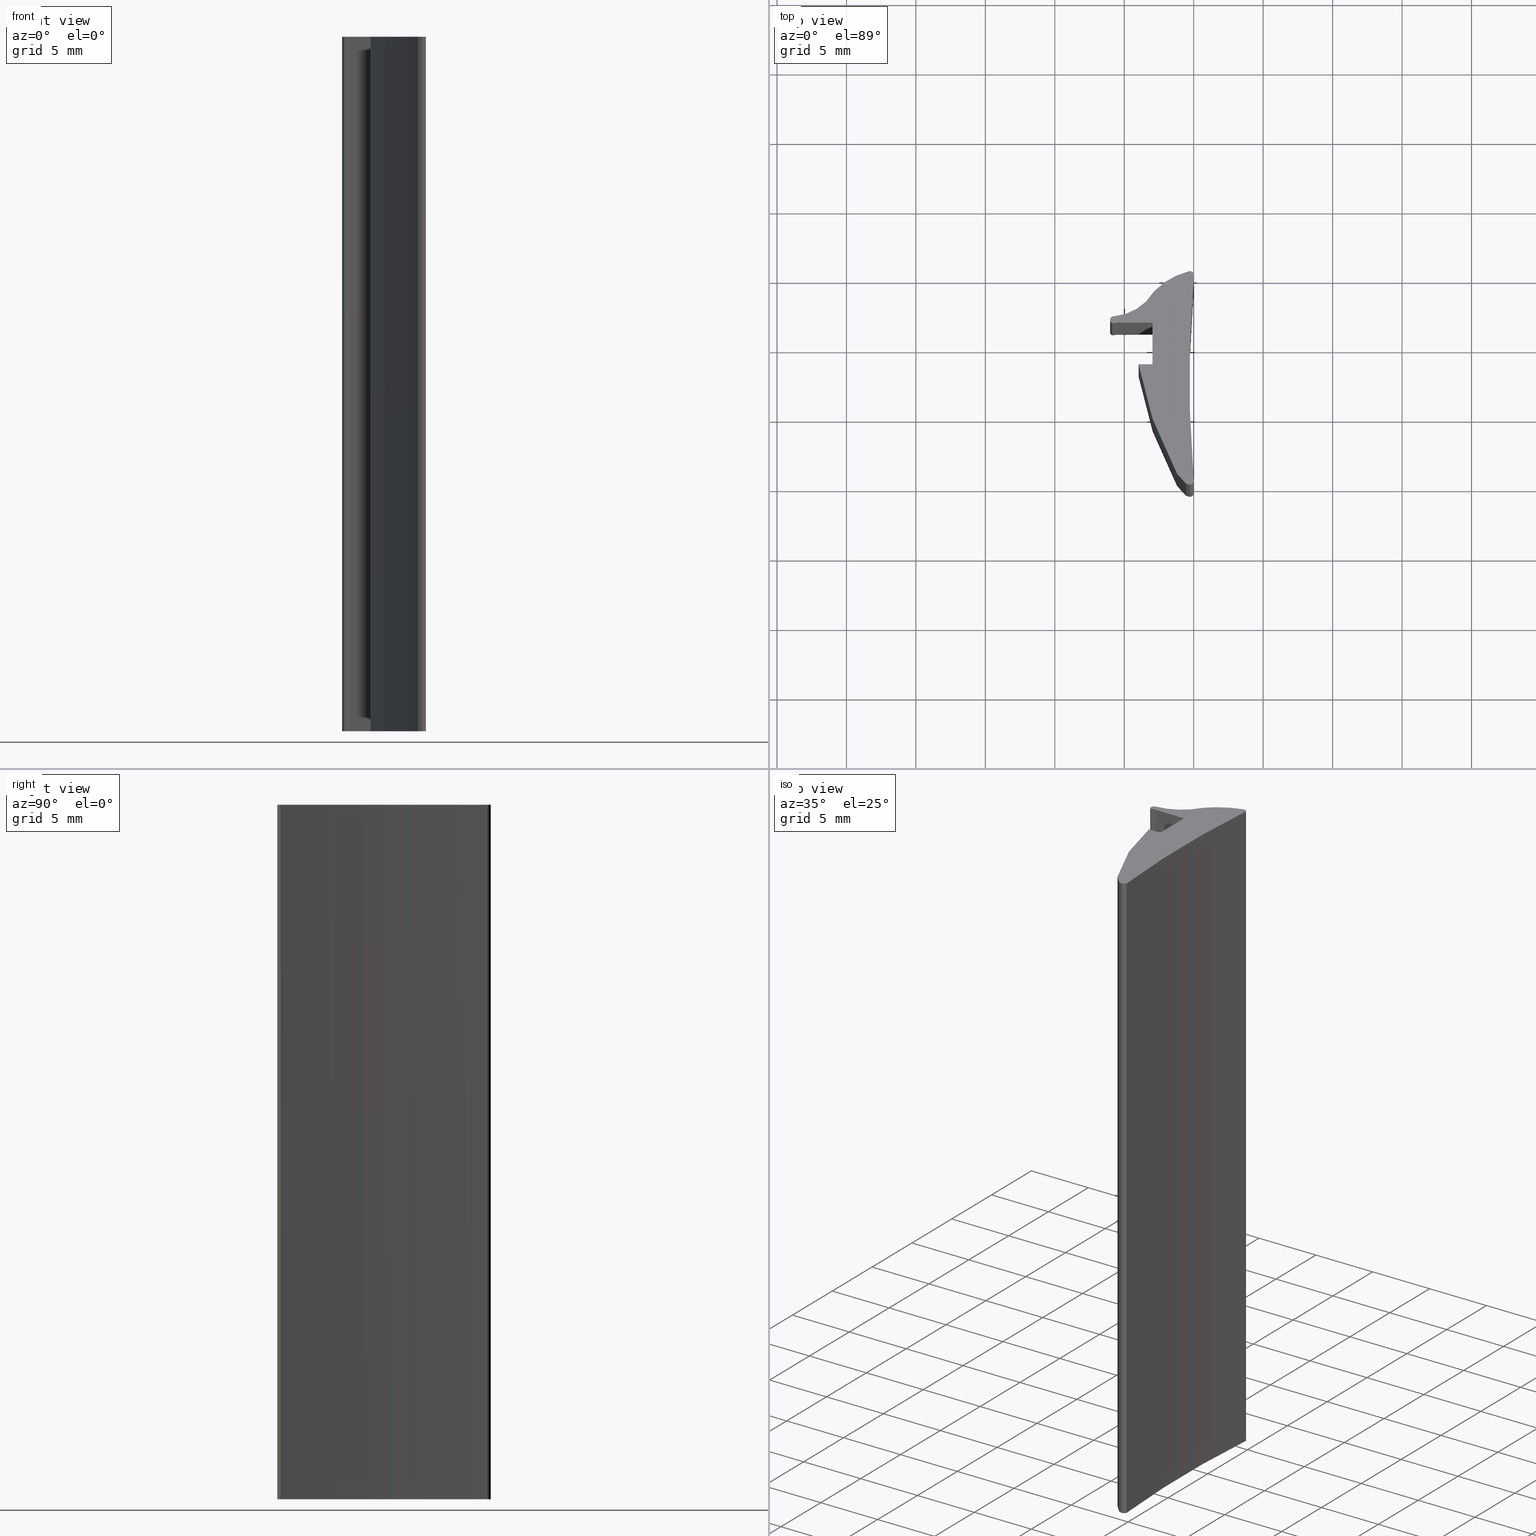
[diagram: canonical four-view strip — front | top / right | iso, engineering-drawing reading convention]
A machine part, canonical four-view strip (front | top / right | iso — engineering-drawing reading convention). The complete STEP part file that produces these views, byte-faithful:
ISO-10303-21;
HEADER;
/****************************************************************
 * Generated by software with PDE/Lib inside                    *
 * PDElib Version v4.4, created Mon 02/23/2004                  *
 * International Technegroup Inc. (www.iti-oh.com)              *
 ****************************************************************/
FILE_DESCRIPTION(('STEP AP203'),'2;1');
FILE_NAME('21.010.00N.stp','2011-03-21T16:07:17',(''),(''),'2009.3.110','THINKDESIGN','');
FILE_SCHEMA(('CONFIG_CONTROL_DESIGN'));
ENDSEC;
DATA;
#2=CARTESIAN_POINT('',(0.843107732099725,10.017684151136564,0.0));
#3=DIRECTION('',(0.0,0.0,1.0));
#4=DIRECTION('',(1.0,0.0,0.0));
#5=AXIS2_PLACEMENT_3D('',#2,#3,#4);
#6=CYLINDRICAL_SURFACE('',#5,5.105810893975942);
#7=CARTESIAN_POINT('',(-0.373412997100786,14.976452365166097,0.0));
#8=VERTEX_POINT('',#7);
#9=CARTESIAN_POINT('',(-3.438338466674850,12.799504298457578,0.0));
#10=VERTEX_POINT('',#9);
#11=CARTESIAN_POINT('',(0.843107732099725,10.017684151136564,0.0));
#12=DIRECTION('',(0.0,0.0,1.0));
#13=DIRECTION('',(1.0,0.0,0.0));
#14=AXIS2_PLACEMENT_3D('',#11,#12,#13);
#15=CIRCLE('',#14,5.105810893975942);
#16=EDGE_CURVE('',#8,#10,#15,.T.);
#17=ORIENTED_EDGE('',*,*,#16,.T.);
#18=CARTESIAN_POINT('',(-3.438338466674850,12.799504298457578,50.0));
#19=VERTEX_POINT('',#18);
#20=CARTESIAN_POINT('',(-3.438338466674850,12.799504298457578,0.0));
#21=DIRECTION('',(0.0,0.0,1.0));
#22=VECTOR('',#21,50.0);
#23=LINE('',#20,#22);
#24=EDGE_CURVE('',#10,#19,#23,.T.);
#25=ORIENTED_EDGE('',*,*,#24,.T.);
#26=CARTESIAN_POINT('',(-0.373412997100786,14.976452365166097,50.0));
#27=VERTEX_POINT('',#26);
#28=CARTESIAN_POINT('',(0.843107732099725,10.017684151136564,50.0));
#29=DIRECTION('',(0.0,0.0,1.0));
#30=DIRECTION('',(1.0,0.0,0.0));
#31=AXIS2_PLACEMENT_3D('',#28,#29,#30);
#32=CIRCLE('',#31,5.105810893975942);
#33=EDGE_CURVE('',#27,#19,#32,.T.);
#34=ORIENTED_EDGE('',*,*,#33,.F.);
#35=CARTESIAN_POINT('',(-0.373412997100786,14.976452365166097,0.0));
#36=DIRECTION('',(0.0,0.0,1.0));
#37=VECTOR('',#36,50.0);
#38=LINE('',#35,#37);
#39=EDGE_CURVE('',#8,#27,#38,.T.);
#40=ORIENTED_EDGE('',*,*,#39,.F.);
#41=EDGE_LOOP('',(#17,#25,#34,#40));
#42=FACE_OUTER_BOUND('',#41,.T.);
#43=ADVANCED_FACE('',(#42),#6,.T.);
#44=CARTESIAN_POINT('',(-6.041799594229815,15.450228709320072,0.0));
#45=DIRECTION('',(0.0,0.0,-1.0));
#46=DIRECTION('',(0.700717752856592,-0.713438596398882,0.0));
#47=AXIS2_PLACEMENT_3D('',#44,#45,#46);
#48=CYLINDRICAL_SURFACE('',#47,3.715420534075678);
#49=CARTESIAN_POINT('',(-5.776201867659438,11.744313492714355,0.0));
#50=VERTEX_POINT('',#49);
#51=CARTESIAN_POINT('',(-6.041799594229815,15.450228709320072,0.0));
#52=DIRECTION('',(0.0,0.0,-1.0));
#53=DIRECTION('',(1.0,0.0,0.0));
#54=AXIS2_PLACEMENT_3D('',#51,#52,#53);
#55=CIRCLE('',#54,3.715420534075678);
#56=EDGE_CURVE('',#10,#50,#55,.T.);
#57=ORIENTED_EDGE('',*,*,#56,.T.);
#58=CARTESIAN_POINT('',(-5.776201867659438,11.744313492714355,50.0));
#59=VERTEX_POINT('',#58);
#60=CARTESIAN_POINT('',(-5.776201867659438,11.744313492714355,0.0));
#61=DIRECTION('',(0.0,0.0,1.0));
#62=VECTOR('',#61,50.0);
#63=LINE('',#60,#62);
#64=EDGE_CURVE('',#50,#59,#63,.T.);
#65=ORIENTED_EDGE('',*,*,#64,.T.);
#66=CARTESIAN_POINT('',(-6.041799594229815,15.450228709320072,50.0));
#67=DIRECTION('',(0.0,0.0,-1.0));
#68=DIRECTION('',(1.0,0.0,0.0));
#69=AXIS2_PLACEMENT_3D('',#66,#67,#68);
#70=CIRCLE('',#69,3.715420534075678);
#71=EDGE_CURVE('',#19,#59,#70,.T.);
#72=ORIENTED_EDGE('',*,*,#71,.F.);
#73=ORIENTED_EDGE('',*,*,#24,.F.);
#74=EDGE_LOOP('',(#57,#65,#72,#73));
#75=FACE_OUTER_BOUND('',#74,.T.);
#76=ADVANCED_FACE('',(#75),#48,.F.);
#77=CARTESIAN_POINT('',(-5.759503569048775,11.483784180390103,0.0));
#78=DIRECTION('',(0.0,0.0,1.0));
#79=DIRECTION('',(1.0,0.0,0.0));
#80=AXIS2_PLACEMENT_3D('',#77,#78,#79);
#81=CYLINDRICAL_SURFACE('',#80,0.261063892096558);
#82=CARTESIAN_POINT('',(-5.858938819292234,11.242398624141060,0.0));
#83=VERTEX_POINT('',#82);
#84=CARTESIAN_POINT('',(-5.759503569048775,11.483784180390103,0.0));
#85=DIRECTION('',(0.0,0.0,1.0));
#86=DIRECTION('',(1.0,0.0,0.0));
#87=AXIS2_PLACEMENT_3D('',#84,#85,#86);
#88=CIRCLE('',#87,0.261063892096558);
#89=EDGE_CURVE('',#50,#83,#88,.T.);
#90=ORIENTED_EDGE('',*,*,#89,.T.);
#91=CARTESIAN_POINT('',(-5.858938819292234,11.242398624141060,50.0));
#92=VERTEX_POINT('',#91);
#93=CARTESIAN_POINT('',(-5.858938819292234,11.242398624141060,0.0));
#94=DIRECTION('',(0.0,0.0,1.0));
#95=VECTOR('',#94,50.0);
#96=LINE('',#93,#95);
#97=EDGE_CURVE('',#83,#92,#96,.T.);
#98=ORIENTED_EDGE('',*,*,#97,.T.);
#99=CARTESIAN_POINT('',(-5.759503569048775,11.483784180390103,50.0));
#100=DIRECTION('',(0.0,0.0,1.0));
#101=DIRECTION('',(1.0,0.0,0.0));
#102=AXIS2_PLACEMENT_3D('',#99,#100,#101);
#103=CIRCLE('',#102,0.261063892096558);
#104=EDGE_CURVE('',#59,#92,#103,.T.);
#105=ORIENTED_EDGE('',*,*,#104,.F.);
#106=ORIENTED_EDGE('',*,*,#64,.F.);
#107=EDGE_LOOP('',(#90,#98,#105,#106));
#108=FACE_OUTER_BOUND('',#107,.T.);
#109=ADVANCED_FACE('',(#108),#81,.T.);
#110=CARTESIAN_POINT('',(-5.858938819292234,11.242398624141060,0.0));
#111=DIRECTION('',(0.113963014309098,-0.993484993026862,0.0));
#112=DIRECTION('',(0.993484993026862,0.113963014309098,0.0));
#113=AXIS2_PLACEMENT_3D('',#110,#111,#112);
#114=PLANE('',#113);
#115=CARTESIAN_POINT('',(-5.465199206703801,11.287564634114460,0.0));
#116=VERTEX_POINT('',#115);
#117=CARTESIAN_POINT('',(-5.858938819292234,11.242398624141060,0.0));
#118=DIRECTION('',(0.993484993026865,0.113963014309073,0.0));
#119=VECTOR('',#118,0.396321650907493);
#120=LINE('',#117,#119);
#121=EDGE_CURVE('',#83,#116,#120,.T.);
#122=ORIENTED_EDGE('',*,*,#121,.T.);
#123=CARTESIAN_POINT('',(-5.465199206703801,11.287564634114460,50.0));
#124=VERTEX_POINT('',#123);
#125=CARTESIAN_POINT('',(-5.465199206703801,11.287564634114460,0.0));
#126=DIRECTION('',(0.0,0.0,1.0));
#127=VECTOR('',#126,50.0);
#128=LINE('',#125,#127);
#129=EDGE_CURVE('',#116,#124,#128,.T.);
#130=ORIENTED_EDGE('',*,*,#129,.T.);
#131=CARTESIAN_POINT('',(-5.858938819292234,11.242398624141060,50.0));
#132=DIRECTION('',(0.993484993026865,0.113963014309073,0.0));
#133=VECTOR('',#132,0.396321650907493);
#134=LINE('',#131,#133);
#135=EDGE_CURVE('',#92,#124,#134,.T.);
#136=ORIENTED_EDGE('',*,*,#135,.F.);
#137=ORIENTED_EDGE('',*,*,#97,.F.);
#138=EDGE_LOOP('',(#122,#130,#136,#137));
#139=FACE_OUTER_BOUND('',#138,.T.);
#140=ADVANCED_FACE('',(#139),#114,.T.);
#141=CARTESIAN_POINT('',(-5.465199206703801,11.287564634114460,0.0));
#142=DIRECTION('',(0.0,-1.0,0.0));
#143=DIRECTION('',(1.0,0.0,0.0));
#144=AXIS2_PLACEMENT_3D('',#141,#142,#143);
#145=PLANE('',#144);
#146=CARTESIAN_POINT('',(-4.965191687707375,11.287564634114460,0.0));
#147=VERTEX_POINT('',#146);
#148=CARTESIAN_POINT('',(-5.465199206703801,11.287564634114460,0.0));
#149=DIRECTION('',(1.0,0.0,0.0));
#150=VECTOR('',#149,0.500007518996474);
#151=LINE('',#148,#150);
#152=EDGE_CURVE('',#116,#147,#151,.T.);
#153=ORIENTED_EDGE('',*,*,#152,.T.);
#154=CARTESIAN_POINT('',(-4.965191687707375,11.287564634114460,50.0));
#155=VERTEX_POINT('',#154);
#156=CARTESIAN_POINT('',(-4.965191687707375,11.287564634114460,0.0));
#157=DIRECTION('',(0.0,0.0,1.0));
#158=VECTOR('',#157,50.0);
#159=LINE('',#156,#158);
#160=EDGE_CURVE('',#147,#155,#159,.T.);
#161=ORIENTED_EDGE('',*,*,#160,.T.);
#162=CARTESIAN_POINT('',(-5.465199206703801,11.287564634114460,50.0));
#163=DIRECTION('',(1.0,0.0,0.0));
#164=VECTOR('',#163,0.500007518996474);
#165=LINE('',#162,#164);
#166=EDGE_CURVE('',#124,#155,#165,.T.);
#167=ORIENTED_EDGE('',*,*,#166,.F.);
#168=ORIENTED_EDGE('',*,*,#129,.F.);
#169=EDGE_LOOP('',(#153,#161,#167,#168));
#170=FACE_OUTER_BOUND('',#169,.T.);
#171=ADVANCED_FACE('',(#170),#145,.T.);
#172=CARTESIAN_POINT('',(-4.965191687707375,11.287564634114460,0.0));
#173=DIRECTION('',(0.000008720095741,-0.999999999961980,0.0));
#174=DIRECTION('',(0.999999999961980,0.000008720095741,0.0));
#175=AXIS2_PLACEMENT_3D('',#172,#173,#174);
#176=PLANE('',#175);
#177=CARTESIAN_POINT('',(-4.090201421958682,11.287572264112896,0.0));
#178=VERTEX_POINT('',#177);
#179=CARTESIAN_POINT('',(-4.965191687707375,11.287564634114460,0.0));
#180=DIRECTION('',(0.999999999961980,0.000008720095496,0.0));
#181=VECTOR('',#180,0.874990265781894);
#182=LINE('',#179,#181);
#183=EDGE_CURVE('',#147,#178,#182,.T.);
#184=ORIENTED_EDGE('',*,*,#183,.T.);
#185=CARTESIAN_POINT('',(-4.090201421958682,11.287572264112896,50.0));
#186=VERTEX_POINT('',#185);
#187=CARTESIAN_POINT('',(-4.090201421958682,11.287572264112896,0.0));
#188=DIRECTION('',(0.0,0.0,1.0));
#189=VECTOR('',#188,50.0);
#190=LINE('',#187,#189);
#191=EDGE_CURVE('',#178,#186,#190,.T.);
#192=ORIENTED_EDGE('',*,*,#191,.T.);
#193=CARTESIAN_POINT('',(-4.965191687707375,11.287564634114460,50.0));
#194=DIRECTION('',(0.999999999961980,0.000008720095496,0.0));
#195=VECTOR('',#194,0.874990265781894);
#196=LINE('',#193,#195);
#197=EDGE_CURVE('',#155,#186,#196,.T.);
#198=ORIENTED_EDGE('',*,*,#197,.F.);
#199=ORIENTED_EDGE('',*,*,#160,.F.);
#200=EDGE_LOOP('',(#184,#192,#198,#199));
#201=FACE_OUTER_BOUND('',#200,.T.);
#202=ADVANCED_FACE('',(#201),#176,.T.);
#203=CARTESIAN_POINT('',(-4.090201421958682,11.287572264112896,0.0));
#204=DIRECTION('',(0.0,-1.0,0.0));
#205=DIRECTION('',(1.0,0.0,0.0));
#206=AXIS2_PLACEMENT_3D('',#203,#204,#205);
#207=PLANE('',#206);
#208=CARTESIAN_POINT('',(-2.965201671713658,11.287572264112896,0.0));
#209=VERTEX_POINT('',#208);
#210=CARTESIAN_POINT('',(-4.090201421958682,11.287572264112896,0.0));
#211=DIRECTION('',(1.0,0.0,0.0));
#212=VECTOR('',#211,1.124999750245079);
#213=LINE('',#210,#212);
#214=EDGE_CURVE('',#178,#209,#213,.T.);
#215=ORIENTED_EDGE('',*,*,#214,.T.);
#216=CARTESIAN_POINT('',(-2.965201671713658,11.287572264112896,50.0));
#217=VERTEX_POINT('',#216);
#218=CARTESIAN_POINT('',(-2.965201671713658,11.287572264112896,0.0));
#219=DIRECTION('',(0.0,0.0,1.0));
#220=VECTOR('',#219,50.0);
#221=LINE('',#218,#220);
#222=EDGE_CURVE('',#209,#217,#221,.T.);
#223=ORIENTED_EDGE('',*,*,#222,.T.);
#224=CARTESIAN_POINT('',(-4.090201421958682,11.287572264112896,50.0));
#225=DIRECTION('',(1.0,0.0,0.0));
#226=VECTOR('',#225,1.124999750245079);
#227=LINE('',#224,#226);
#228=EDGE_CURVE('',#186,#217,#227,.T.);
#229=ORIENTED_EDGE('',*,*,#228,.F.);
#230=ORIENTED_EDGE('',*,*,#191,.F.);
#231=EDGE_LOOP('',(#215,#223,#229,#230));
#232=FACE_OUTER_BOUND('',#231,.T.);
#233=ADVANCED_FACE('',(#232),#207,.T.);
#234=CARTESIAN_POINT('',(-2.965201671713658,11.287572264112896,0.0));
#235=DIRECTION('',(-1.0,0.0,0.0));
#236=DIRECTION('',(0.0,-1.0,0.0));
#237=AXIS2_PLACEMENT_3D('',#234,#235,#236);
#238=PLANE('',#237);
#239=CARTESIAN_POINT('',(-2.965201671713658,8.287572930124952,0.0));
#240=VERTEX_POINT('',#239);
#241=CARTESIAN_POINT('',(-2.965201671713658,11.287572264112896,0.0));
#242=DIRECTION('',(0.0,-1.0,0.0));
#243=VECTOR('',#242,2.999999333988011);
#244=LINE('',#241,#243);
#245=EDGE_CURVE('',#209,#240,#244,.T.);
#246=ORIENTED_EDGE('',*,*,#245,.T.);
#247=CARTESIAN_POINT('',(-2.965201671713658,8.287572930124952,50.0));
#248=VERTEX_POINT('',#247);
#249=CARTESIAN_POINT('',(-2.965201671713658,8.287572930124952,0.0));
#250=DIRECTION('',(0.0,0.0,1.0));
#251=VECTOR('',#250,50.0);
#252=LINE('',#249,#251);
#253=EDGE_CURVE('',#240,#248,#252,.T.);
#254=ORIENTED_EDGE('',*,*,#253,.T.);
#255=CARTESIAN_POINT('',(-2.965201671713658,11.287572264112896,50.0));
#256=DIRECTION('',(0.0,-1.0,0.0));
#257=VECTOR('',#256,2.999999333988011);
#258=LINE('',#255,#257);
#259=EDGE_CURVE('',#217,#248,#258,.T.);
#260=ORIENTED_EDGE('',*,*,#259,.F.);
#261=ORIENTED_EDGE('',*,*,#222,.F.);
#262=EDGE_LOOP('',(#246,#254,#260,#261));
#263=FACE_OUTER_BOUND('',#262,.T.);
#264=ADVANCED_FACE('',(#263),#238,.T.);
#265=CARTESIAN_POINT('',(-2.965201671713658,8.287572930124952,0.0));
#266=DIRECTION('',(0.0,1.0,0.0));
#267=DIRECTION('',(-1.0,0.0,0.0));
#268=AXIS2_PLACEMENT_3D('',#265,#266,#267);
#269=PLANE('',#268);
#270=CARTESIAN_POINT('',(-3.965201449709184,8.287572930124952,0.0));
#271=VERTEX_POINT('',#270);
#272=CARTESIAN_POINT('',(-2.965201671713658,8.287572930124952,0.0));
#273=DIRECTION('',(-1.0,0.0,0.0));
#274=VECTOR('',#273,0.999999777995598);
#275=LINE('',#272,#274);
#276=EDGE_CURVE('',#240,#271,#275,.T.);
#277=ORIENTED_EDGE('',*,*,#276,.T.);
#278=CARTESIAN_POINT('',(-3.965201449709184,8.287572930124952,50.0));
#279=VERTEX_POINT('',#278);
#280=CARTESIAN_POINT('',(-3.965201449709184,8.287572930124952,0.0));
#281=DIRECTION('',(0.0,0.0,1.0));
#282=VECTOR('',#281,50.0);
#283=LINE('',#280,#282);
#284=EDGE_CURVE('',#271,#279,#283,.T.);
#285=ORIENTED_EDGE('',*,*,#284,.T.);
#286=CARTESIAN_POINT('',(-2.965201671713658,8.287572930124952,50.0));
#287=DIRECTION('',(-1.0,0.0,0.0));
#288=VECTOR('',#287,0.999999777995598);
#289=LINE('',#286,#288);
#290=EDGE_CURVE('',#248,#279,#289,.T.);
#291=ORIENTED_EDGE('',*,*,#290,.F.);
#292=ORIENTED_EDGE('',*,*,#253,.F.);
#293=EDGE_LOOP('',(#277,#285,#291,#292));
#294=FACE_OUTER_BOUND('',#293,.T.);
#295=ADVANCED_FACE('',(#294),#269,.T.);
#296=CARTESIAN_POINT('',(-3.965201449709184,8.287572930124952,0.0));
#297=DIRECTION('',(-0.968849924168237,-0.247648590626318,0.0));
#298=DIRECTION('',(0.247648590626318,-0.968849924168237,0.0));
#299=AXIS2_PLACEMENT_3D('',#296,#297,#298);
#300=PLANE('',#299);
#301=CARTESIAN_POINT('',(-2.956824593572492,4.342604625923286,0.0));
#302=VERTEX_POINT('',#301);
#303=CARTESIAN_POINT('',(-3.965201449709184,8.287572930124952,0.0));
#304=DIRECTION('',(0.247648590626304,-0.968849924168240,0.0));
#305=VECTOR('',#304,4.071805349614181);
#306=LINE('',#303,#305);
#307=EDGE_CURVE('',#271,#302,#306,.T.);
#308=ORIENTED_EDGE('',*,*,#307,.T.);
#309=CARTESIAN_POINT('',(-2.956824593572492,4.342604625923286,50.0));
#310=VERTEX_POINT('',#309);
#311=CARTESIAN_POINT('',(-2.956824593572492,4.342604625923286,0.0));
#312=DIRECTION('',(0.0,0.0,1.0));
#313=VECTOR('',#312,50.0);
#314=LINE('',#311,#313);
#315=EDGE_CURVE('',#302,#310,#314,.T.);
#316=ORIENTED_EDGE('',*,*,#315,.T.);
#317=CARTESIAN_POINT('',(-3.965201449709184,8.287572930124952,50.0));
#318=DIRECTION('',(0.247648590626304,-0.968849924168240,0.0));
#319=VECTOR('',#318,4.071805349614181);
#320=LINE('',#317,#319);
#321=EDGE_CURVE('',#279,#310,#320,.T.);
#322=ORIENTED_EDGE('',*,*,#321,.F.);
#323=ORIENTED_EDGE('',*,*,#284,.F.);
#324=EDGE_LOOP('',(#308,#316,#322,#323));
#325=FACE_OUTER_BOUND('',#324,.T.);
#326=ADVANCED_FACE('',(#325),#300,.T.);
#327=CARTESIAN_POINT('',(-2.956824593572492,4.342604625923286,0.0));
#328=DIRECTION('',(-0.913152318264140,-0.407618502584006,0.0));
#329=DIRECTION('',(0.407618502584006,-0.913152318264140,0.0));
#330=AXIS2_PLACEMENT_3D('',#327,#328,#329);
#331=PLANE('',#330);
#332=CARTESIAN_POINT('',(-1.198348733961666,0.403243930478311,0.0));
#333=VERTEX_POINT('',#332);
#334=CARTESIAN_POINT('',(-2.956824593572492,4.342604625923286,0.0));
#335=DIRECTION('',(0.407618502583956,-0.913152318264162,0.0));
#336=VECTOR('',#335,4.314023648249227);
#337=LINE('',#334,#336);
#338=EDGE_CURVE('',#302,#333,#337,.T.);
#339=ORIENTED_EDGE('',*,*,#338,.T.);
#340=CARTESIAN_POINT('',(-1.198348733961666,0.403243930478311,50.0));
#341=VERTEX_POINT('',#340);
#342=CARTESIAN_POINT('',(-1.198348733961666,0.403243930478311,0.0));
#343=DIRECTION('',(0.0,0.0,1.0));
#344=VECTOR('',#343,50.0);
#345=LINE('',#342,#344);
#346=EDGE_CURVE('',#333,#341,#345,.T.);
#347=ORIENTED_EDGE('',*,*,#346,.T.);
#348=CARTESIAN_POINT('',(-2.956824593572492,4.342604625923286,50.0));
#349=DIRECTION('',(0.407618502583956,-0.913152318264162,0.0));
#350=VECTOR('',#349,4.314023648249227);
#351=LINE('',#348,#350);
#352=EDGE_CURVE('',#310,#341,#351,.T.);
#353=ORIENTED_EDGE('',*,*,#352,.F.);
#354=ORIENTED_EDGE('',*,*,#315,.F.);
#355=EDGE_LOOP('',(#339,#347,#353,#354));
#356=FACE_OUTER_BOUND('',#355,.T.);
#357=ADVANCED_FACE('',(#356),#331,.T.);
#358=CARTESIAN_POINT('',(-1.198348733961666,0.403243930478311,0.0));
#359=DIRECTION('',(-0.743121020740121,-0.669157043252301,0.0));
#360=DIRECTION('',(0.669157043252301,-0.743121020740121,0.0));
#361=AXIS2_PLACEMENT_3D('',#358,#359,#360);
#362=PLANE('',#361);
#363=CARTESIAN_POINT('',(-0.556739676401321,-0.309284141337230,0.0));
#364=VERTEX_POINT('',#363);
#365=CARTESIAN_POINT('',(-1.198348733961666,0.403243930478311,0.0));
#366=DIRECTION('',(0.669157043252249,-0.743121020740167,0.0));
#367=VECTOR('',#366,0.958831807914697);
#368=LINE('',#365,#367);
#369=EDGE_CURVE('',#333,#364,#368,.T.);
#370=ORIENTED_EDGE('',*,*,#369,.T.);
#371=CARTESIAN_POINT('',(-0.556739676401321,-0.309284141337230,50.0));
#372=VERTEX_POINT('',#371);
#373=CARTESIAN_POINT('',(-0.556739676401321,-0.309284141337230,0.0));
#374=DIRECTION('',(0.0,0.0,1.0));
#375=VECTOR('',#374,50.0);
#376=LINE('',#373,#375);
#377=EDGE_CURVE('',#364,#372,#376,.T.);
#378=ORIENTED_EDGE('',*,*,#377,.T.);
#379=CARTESIAN_POINT('',(-1.198348733961666,0.403243930478311,50.0));
#380=DIRECTION('',(0.669157043252249,-0.743121020740167,0.0));
#381=VECTOR('',#380,0.958831807914697);
#382=LINE('',#379,#381);
#383=EDGE_CURVE('',#341,#372,#382,.T.);
#384=ORIENTED_EDGE('',*,*,#383,.F.);
#385=ORIENTED_EDGE('',*,*,#346,.F.);
#386=EDGE_LOOP('',(#370,#378,#384,#385));
#387=FACE_OUTER_BOUND('',#386,.T.);
#388=ADVANCED_FACE('',(#387),#362,.T.);
#389=CARTESIAN_POINT('',(-0.556739676401321,-0.309284141337230,0.0));
#390=DIRECTION('',(-0.292342955254938,-0.956313545084879,0.0));
#391=DIRECTION('',(0.956313545084879,-0.292342955254938,0.0));
#392=AXIS2_PLACEMENT_3D('',#389,#390,#391);
#393=PLANE('',#392);
#394=CARTESIAN_POINT('',(-0.343704143695504,-0.374408636881071,0.0));
#395=VERTEX_POINT('',#394);
#396=CARTESIAN_POINT('',(-0.556739676401321,-0.309284141337230,0.0));
#397=DIRECTION('',(0.956313545084875,-0.292342955254952,0.0));
#398=VECTOR('',#397,0.222767452997252);
#399=LINE('',#396,#398);
#400=EDGE_CURVE('',#364,#395,#399,.T.);
#401=ORIENTED_EDGE('',*,*,#400,.T.);
#402=CARTESIAN_POINT('',(-0.343704143695504,-0.374408636881071,50.0));
#403=VERTEX_POINT('',#402);
#404=CARTESIAN_POINT('',(-0.343704143695504,-0.374408636881071,0.0));
#405=DIRECTION('',(0.0,0.0,1.0));
#406=VECTOR('',#405,50.0);
#407=LINE('',#404,#406);
#408=EDGE_CURVE('',#395,#403,#407,.T.);
#409=ORIENTED_EDGE('',*,*,#408,.T.);
#410=CARTESIAN_POINT('',(-0.556739676401321,-0.309284141337230,50.0));
#411=DIRECTION('',(0.956313545084875,-0.292342955254952,0.0));
#412=VECTOR('',#411,0.222767452997252);
#413=LINE('',#410,#412);
#414=EDGE_CURVE('',#372,#403,#413,.T.);
#415=ORIENTED_EDGE('',*,*,#414,.F.);
#416=ORIENTED_EDGE('',*,*,#377,.F.);
#417=EDGE_LOOP('',(#401,#409,#415,#416));
#418=FACE_OUTER_BOUND('',#417,.T.);
#419=ADVANCED_FACE('',(#418),#393,.T.);
#420=CARTESIAN_POINT('',(-0.267644461038344,-0.099267668865195,0.0));
#421=DIRECTION('',(0.0,0.0,1.0));
#422=DIRECTION('',(-0.266445673116970,-0.963849938152846,0.0));
#423=AXIS2_PLACEMENT_3D('',#420,#421,#422);
#424=CYLINDRICAL_SURFACE('',#423,0.285460378348242);
#425=CARTESIAN_POINT('',(0.0,0.0,0.0));
#426=VERTEX_POINT('',#425);
#427=CARTESIAN_POINT('',(-0.267644461038344,-0.099267668865195,0.0));
#428=DIRECTION('',(0.0,0.0,1.0));
#429=DIRECTION('',(1.0,0.0,0.0));
#430=AXIS2_PLACEMENT_3D('',#427,#428,#429);
#431=CIRCLE('',#430,0.285460378348242);
#432=EDGE_CURVE('',#395,#426,#431,.T.);
#433=ORIENTED_EDGE('',*,*,#432,.T.);
#434=CARTESIAN_POINT('',(0.0,0.0,50.0));
#435=VERTEX_POINT('',#434);
#436=CARTESIAN_POINT('',(0.0,0.0,0.0));
#437=DIRECTION('',(0.0,0.0,1.0));
#438=VECTOR('',#437,50.0);
#439=LINE('',#436,#438);
#440=EDGE_CURVE('',#426,#435,#439,.T.);
#441=ORIENTED_EDGE('',*,*,#440,.T.);
#442=CARTESIAN_POINT('',(-0.267644461038344,-0.099267668865195,50.0));
#443=DIRECTION('',(0.0,0.0,1.0));
#444=DIRECTION('',(1.0,0.0,0.0));
#445=AXIS2_PLACEMENT_3D('',#442,#443,#444);
#446=CIRCLE('',#445,0.285460378348242);
#447=EDGE_CURVE('',#403,#435,#446,.T.);
#448=ORIENTED_EDGE('',*,*,#447,.F.);
#449=ORIENTED_EDGE('',*,*,#408,.F.);
#450=EDGE_LOOP('',(#433,#441,#448,#449));
#451=FACE_OUTER_BOUND('',#450,.T.);
#452=ADVANCED_FACE('',(#451),#424,.T.);
#453=CARTESIAN_POINT('',(87.253426650678648,7.314828887801923,0.0));
#454=DIRECTION('',(0.0,0.0,-1.0));
#455=DIRECTION('',(-0.996504321547752,-0.083541230160044,0.0));
#456=AXIS2_PLACEMENT_3D('',#453,#454,#455);
#457=CYLINDRICAL_SURFACE('',#456,87.559506530948141);
#458=CARTESIAN_POINT('',(-0.000007629997526,14.629566762176637,0.0));
#459=VERTEX_POINT('',#458);
#460=CARTESIAN_POINT('',(87.253426650678648,7.314828887801923,0.0));
#461=DIRECTION('',(0.0,0.0,-1.0));
#462=DIRECTION('',(1.0,0.0,0.0));
#463=AXIS2_PLACEMENT_3D('',#460,#461,#462);
#464=CIRCLE('',#463,87.559506530948141);
#465=EDGE_CURVE('',#426,#459,#464,.T.);
#466=ORIENTED_EDGE('',*,*,#465,.T.);
#467=CARTESIAN_POINT('',(-0.000007629997526,14.629566762176637,50.0));
#468=VERTEX_POINT('',#467);
#469=CARTESIAN_POINT('',(-0.000007629997526,14.629566762176637,0.0));
#470=DIRECTION('',(0.0,0.0,1.0));
#471=VECTOR('',#470,50.0);
#472=LINE('',#469,#471);
#473=EDGE_CURVE('',#459,#468,#472,.T.);
#474=ORIENTED_EDGE('',*,*,#473,.T.);
#475=CARTESIAN_POINT('',(87.253426650678648,7.314828887801923,50.0));
#476=DIRECTION('',(0.0,0.0,-1.0));
#477=DIRECTION('',(1.0,0.0,0.0));
#478=AXIS2_PLACEMENT_3D('',#475,#476,#477);
#479=CIRCLE('',#478,87.559506530948141);
#480=EDGE_CURVE('',#435,#468,#479,.T.);
#481=ORIENTED_EDGE('',*,*,#480,.F.);
#482=ORIENTED_EDGE('',*,*,#440,.F.);
#483=EDGE_LOOP('',(#466,#474,#481,#482));
#484=FACE_OUTER_BOUND('',#483,.T.);
#485=ADVANCED_FACE('',(#484),#457,.F.);
#486=CARTESIAN_POINT('',(-0.270654928905515,14.712647295410534,0.0));
#487=DIRECTION('',(0.0,0.0,1.0));
#488=DIRECTION('',(0.955972956396730,-0.293454777841656,0.0));
#489=AXIS2_PLACEMENT_3D('',#486,#487,#488);
#490=CYLINDRICAL_SURFACE('',#489,0.283111877900871);
#491=CARTESIAN_POINT('',(-0.270654928905515,14.712647295410534,0.0));
#492=DIRECTION('',(0.0,0.0,1.0));
#493=DIRECTION('',(1.0,0.0,0.0));
#494=AXIS2_PLACEMENT_3D('',#491,#492,#493);
#495=CIRCLE('',#494,0.283111877900871);
#496=EDGE_CURVE('',#459,#8,#495,.T.);
#497=ORIENTED_EDGE('',*,*,#496,.T.);
#498=ORIENTED_EDGE('',*,*,#39,.T.);
#499=CARTESIAN_POINT('',(-0.270654928905515,14.712647295410534,50.0));
#500=DIRECTION('',(0.0,0.0,1.0));
#501=DIRECTION('',(1.0,0.0,0.0));
#502=AXIS2_PLACEMENT_3D('',#499,#500,#501);
#503=CIRCLE('',#502,0.283111877900871);
#504=EDGE_CURVE('',#468,#27,#503,.T.);
#505=ORIENTED_EDGE('',*,*,#504,.F.);
#506=ORIENTED_EDGE('',*,*,#473,.F.);
#507=EDGE_LOOP('',(#497,#498,#505,#506));
#508=FACE_OUTER_BOUND('',#507,.T.);
#509=ADVANCED_FACE('',(#508),#490,.T.);
#510=CARTESIAN_POINT('',(-6.624410532808724,-1.922781503057649,0.0));
#511=DIRECTION('',(0.0,0.0,1.0));
#512=DIRECTION('',(1.0,0.0,0.0));
#513=AXIS2_PLACEMENT_3D('',#510,#511,#512);
#514=PLANE('',#513);
#515=ORIENTED_EDGE('',*,*,#496,.F.);
#516=ORIENTED_EDGE('',*,*,#465,.F.);
#517=ORIENTED_EDGE('',*,*,#432,.F.);
#518=ORIENTED_EDGE('',*,*,#400,.F.);
#519=ORIENTED_EDGE('',*,*,#369,.F.);
#520=ORIENTED_EDGE('',*,*,#338,.F.);
#521=ORIENTED_EDGE('',*,*,#307,.F.);
#522=ORIENTED_EDGE('',*,*,#276,.F.);
#523=ORIENTED_EDGE('',*,*,#245,.F.);
#524=ORIENTED_EDGE('',*,*,#214,.F.);
#525=ORIENTED_EDGE('',*,*,#183,.F.);
#526=ORIENTED_EDGE('',*,*,#152,.F.);
#527=ORIENTED_EDGE('',*,*,#121,.F.);
#528=ORIENTED_EDGE('',*,*,#89,.F.);
#529=ORIENTED_EDGE('',*,*,#56,.F.);
#530=ORIENTED_EDGE('',*,*,#16,.F.);
#531=EDGE_LOOP('',(#515,#516,#517,#518,#519,#520,#521,#522,#523,#524,#525,#526,#527,#528,#529,#530));
#532=FACE_OUTER_BOUND('',#531,.T.);
#533=ADVANCED_FACE('',(#532),#514,.F.);
#534=CARTESIAN_POINT('',(-6.624410532808724,-1.922781503057649,50.0));
#535=DIRECTION('',(0.0,0.0,1.0));
#536=DIRECTION('',(1.0,0.0,0.0));
#537=AXIS2_PLACEMENT_3D('',#534,#535,#536);
#538=PLANE('',#537);
#539=ORIENTED_EDGE('',*,*,#33,.T.);
#540=ORIENTED_EDGE('',*,*,#71,.T.);
#541=ORIENTED_EDGE('',*,*,#104,.T.);
#542=ORIENTED_EDGE('',*,*,#135,.T.);
#543=ORIENTED_EDGE('',*,*,#166,.T.);
#544=ORIENTED_EDGE('',*,*,#197,.T.);
#545=ORIENTED_EDGE('',*,*,#228,.T.);
#546=ORIENTED_EDGE('',*,*,#259,.T.);
#547=ORIENTED_EDGE('',*,*,#290,.T.);
#548=ORIENTED_EDGE('',*,*,#321,.T.);
#549=ORIENTED_EDGE('',*,*,#352,.T.);
#550=ORIENTED_EDGE('',*,*,#383,.T.);
#551=ORIENTED_EDGE('',*,*,#414,.T.);
#552=ORIENTED_EDGE('',*,*,#447,.T.);
#553=ORIENTED_EDGE('',*,*,#480,.T.);
#554=ORIENTED_EDGE('',*,*,#504,.T.);
#555=EDGE_LOOP('',(#539,#540,#541,#542,#543,#544,#545,#546,#547,#548,#549,#550,#551,#552,#553,#554));
#556=FACE_OUTER_BOUND('',#555,.T.);
#557=ADVANCED_FACE('',(#556),#538,.T.);
#558=CLOSED_SHELL('',(#43,#76,#109,#140,#171,#202,#233,#264,#295,#326,#357,#388,#419,#452,#485,#509,#533,#557));
#559=MANIFOLD_SOLID_BREP('',#558);
#565=(NAMED_UNIT(*)PLANE_ANGLE_UNIT()SI_UNIT($,.RADIAN.));
#566=DIMENSIONAL_EXPONENTS(0.0,0.0,0.0,0.0,0.0,0.0,0.0);
#567=PLANE_ANGLE_MEASURE_WITH_UNIT(PLANE_ANGLE_MEASURE(0.017453292500000),#565);
#571=(CONVERSION_BASED_UNIT('DEGREE',#567)NAMED_UNIT(#566)PLANE_ANGLE_UNIT());
#575=(NAMED_UNIT(*)SI_UNIT($,.STERADIAN.)SOLID_ANGLE_UNIT());
#579=(LENGTH_UNIT()NAMED_UNIT(*)SI_UNIT(.MILLI.,.METRE.));
#581=UNCERTAINTY_MEASURE_WITH_UNIT(LENGTH_MEASURE(0.001000000000000),#579,'DISTANCE_ACCURACY_VALUE','');
#583=(GEOMETRIC_REPRESENTATION_CONTEXT(3)GLOBAL_UNCERTAINTY_ASSIGNED_CONTEXT((#581))GLOBAL_UNIT_ASSIGNED_CONTEXT((#571,#575,#579))REPRESENTATION_CONTEXT('thinkdesign','2009.3.110'));
#584=ADVANCED_BREP_SHAPE_REPRESENTATION('',(#559),#583);
#585=APPLICATION_CONTEXT('configuration controlled 3D designs of mechanical parts and assemblies');
#586=APPLICATION_PROTOCOL_DEFINITION('International Standard','config_control_design',1995,#585);
#587=MECHANICAL_CONTEXT('None',#585,'mechanical');
#588=PRODUCT('None','None','None',(#587));
#589=PRODUCT_RELATED_PRODUCT_CATEGORY('detail',$,(#588));
#590=PRODUCT_CATEGORY('part',$);
#591=PRODUCT_CATEGORY_RELATIONSHIP('None','None',#590,#589);
#592=PERSON('PERSON1','None','None',$,$,$);
#593=ORGANIZATION('','None','None');
#594=PERSON_AND_ORGANIZATION(#592,#593);
#595=PERSON_AND_ORGANIZATION_ROLE('design_owner');
#596=CC_DESIGN_PERSON_AND_ORGANIZATION_ASSIGNMENT(#594,#595,(#588));
#597=PRODUCT_DEFINITION_FORMATION_WITH_SPECIFIED_SOURCE('None','None',#588,.NOT_KNOWN.);
#598=PERSON('PERSON2','None','None',$,$,$);
#599=ORGANIZATION('','None','None');
#600=PERSON_AND_ORGANIZATION(#598,#599);
#601=PERSON_AND_ORGANIZATION_ROLE('creator');
#602=CC_DESIGN_PERSON_AND_ORGANIZATION_ASSIGNMENT(#600,#601,(#597));
#603=PERSON('PERSON3','None','None',$,$,$);
#604=ORGANIZATION('','None','None');
#605=PERSON_AND_ORGANIZATION(#603,#604);
#606=PERSON_AND_ORGANIZATION_ROLE('part_supplier');
#607=CC_DESIGN_PERSON_AND_ORGANIZATION_ASSIGNMENT(#605,#606,(#597));
#608=APPROVAL_STATUS('approved');
#609=APPROVAL(#608,'None');
#610=PERSON('PERSON4','None','None',$,$,$);
#611=ORGANIZATION('','None','None');
#612=PERSON_AND_ORGANIZATION(#610,#611);
#613=APPROVAL_ROLE('None');
#614=APPROVAL_PERSON_ORGANIZATION(#612,#609,#613);
#615=CALENDAR_DATE(2011,21,3);
#616=COORDINATED_UNIVERSAL_TIME_OFFSET(0,0,.AHEAD.);
#617=LOCAL_TIME(16,7,17.0,#616);
#618=DATE_AND_TIME(#615,#617);
#619=APPROVAL_DATE_TIME(#618,#609);
#620=CC_DESIGN_APPROVAL(#609,(#597));
#621=SECURITY_CLASSIFICATION_LEVEL('unclassified');
#622=SECURITY_CLASSIFICATION('None','None',#621);
#623=CC_DESIGN_SECURITY_CLASSIFICATION(#622,(#597));
#624=APPROVAL_STATUS('approved');
#625=APPROVAL(#624,'None');
#626=PERSON('PERSON5','None','None',$,$,$);
#627=ORGANIZATION('','None','None');
#628=PERSON_AND_ORGANIZATION(#626,#627);
#629=APPROVAL_ROLE('None');
#630=APPROVAL_PERSON_ORGANIZATION(#628,#625,#629);
#631=CALENDAR_DATE(2011,21,3);
#632=COORDINATED_UNIVERSAL_TIME_OFFSET(0,0,.AHEAD.);
#633=LOCAL_TIME(16,7,17.0,#632);
#634=DATE_AND_TIME(#631,#633);
#635=APPROVAL_DATE_TIME(#634,#625);
#636=CC_DESIGN_APPROVAL(#625,(#622));
#637=PERSON('PERSON6','None','None',$,$,$);
#638=ORGANIZATION('','None','None');
#639=PERSON_AND_ORGANIZATION(#637,#638);
#640=PERSON_AND_ORGANIZATION_ROLE('classification_officer');
#641=CC_DESIGN_PERSON_AND_ORGANIZATION_ASSIGNMENT(#639,#640,(#622));
#642=DATE_TIME_ROLE('classification_date');
#643=CALENDAR_DATE(2011,21,3);
#644=COORDINATED_UNIVERSAL_TIME_OFFSET(0,0,.AHEAD.);
#645=LOCAL_TIME(16,7,17.0,#644);
#646=DATE_AND_TIME(#643,#645);
#647=CC_DESIGN_DATE_AND_TIME_ASSIGNMENT(#646,#642,(#622));
#648=DESIGN_CONTEXT('part definition',#585,'design');
#649=DOCUMENT_TYPE('cad_filename');
#650=DOCUMENT('None','None','None',#649);
#651=PRODUCT_DEFINITION_WITH_ASSOCIATED_DOCUMENTS('None','None',#597,#648,(#650));
#652=PERSON('PERSON7','None','None',$,$,$);
#653=ORGANIZATION('','None','None');
#654=PERSON_AND_ORGANIZATION(#652,#653);
#655=PERSON_AND_ORGANIZATION_ROLE('creator');
#656=CC_DESIGN_PERSON_AND_ORGANIZATION_ASSIGNMENT(#654,#655,(#651));
#657=DATE_TIME_ROLE('creation_date');
#658=CALENDAR_DATE(2011,21,3);
#659=COORDINATED_UNIVERSAL_TIME_OFFSET(0,0,.AHEAD.);
#660=LOCAL_TIME(16,7,17.0,#659);
#661=DATE_AND_TIME(#658,#660);
#662=CC_DESIGN_DATE_AND_TIME_ASSIGNMENT(#661,#657,(#651));
#663=APPROVAL_STATUS('approved');
#664=APPROVAL(#663,'None');
#665=PERSON('PERSON8','None','None',$,$,$);
#666=ORGANIZATION('','None','None');
#667=PERSON_AND_ORGANIZATION(#665,#666);
#668=APPROVAL_ROLE('None');
#669=APPROVAL_PERSON_ORGANIZATION(#667,#664,#668);
#670=CALENDAR_DATE(2011,21,3);
#671=COORDINATED_UNIVERSAL_TIME_OFFSET(0,0,.AHEAD.);
#672=LOCAL_TIME(16,7,17.0,#671);
#673=DATE_AND_TIME(#670,#672);
#674=APPROVAL_DATE_TIME(#673,#664);
#675=CC_DESIGN_APPROVAL(#664,(#651));
#676=PRODUCT_DEFINITION_SHAPE('None','None',#651);
#677=SHAPE_DEFINITION_REPRESENTATION(#676,#584);
#678=DIMENSIONAL_EXPONENTS(0.0,0.0,0.0,0.0,0.0,0.0,0.0);
#679=DIMENSIONAL_EXPONENTS(1.0,0.0,0.0,0.0,0.0,0.0,0.0);
ENDSEC;
END-ISO-10303-21;
